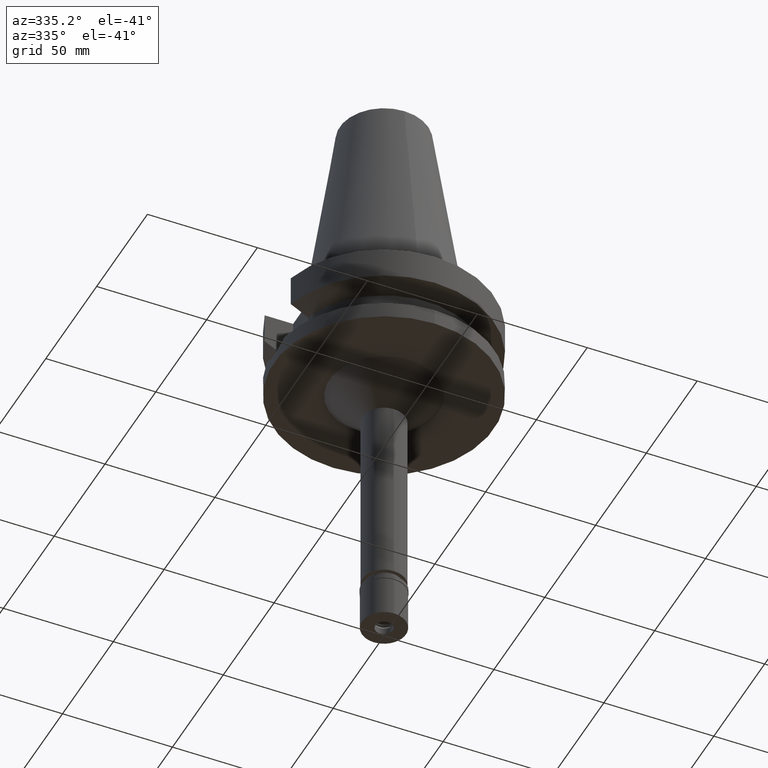
[diagram: clean part render]
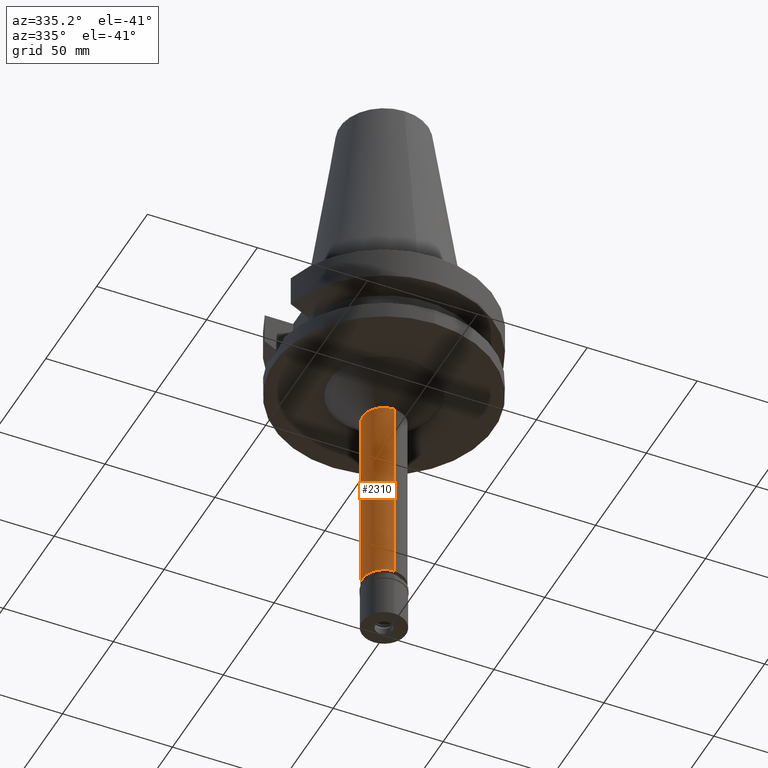
[diagram: same view with one face highlighted and labeled with its STEP entity id]
A machine part, auxiliary view. The second image highlights one B-rep face of the part: STEP entity #2310.
In plain terms, the highlighted cylindrical surface (edge-blend (fillet) strip) has radius 9.75 mm, axis along (0, 0, -1).
Its self-contained STEP definition (entity closure, byte-faithful):
#35 = VERTEX_POINT ( 'NONE', #339 ) ;
#62 = VECTOR ( 'NONE', #1344, 1000.000000000000000 ) ;
#100 = DIRECTION ( 'NONE',  ( 0.0000000000000000000, 0.0000000000000000000, 1.000000000000000000 ) ) ;
#187 = CARTESIAN_POINT ( 'NONE',  ( 0.0000000000000000000, 0.0000000000000000000, -53.00000000000000000 ) ) ;
#238 = CIRCLE ( 'NONE', #2020, 9.750000000000000000 ) ;
#303 = EDGE_LOOP ( 'NONE', ( #1576, #1874, #437, #865 ) ) ;
#339 = CARTESIAN_POINT ( 'NONE',  ( 0.0000000000000000000, -9.750000000000000000, -53.00000000000000000 ) ) ;
#385 = VECTOR ( 'NONE', #421, 1000.000000000000000 ) ;
#421 = DIRECTION ( 'NONE',  ( 0.0000000000000000000, 0.0000000000000000000, -1.000000000000000000 ) ) ;
#435 = VERTEX_POINT ( 'NONE', #2921 ) ;
#437 = ORIENTED_EDGE ( 'NONE', *, *, #807, .T. ) ;
#511 = CARTESIAN_POINT ( 'NONE',  ( 0.0000000000000000000, -9.750000000000000000, -141.5999999999999943 ) ) ;
#521 = FACE_OUTER_BOUND ( 'NONE', #303, .T. ) ;
#794 = DIRECTION ( 'NONE',  ( 0.0000000000000000000, 0.0000000000000000000, -1.000000000000000000 ) ) ;
#807 = EDGE_CURVE ( 'NONE', #35, #435, #1401, .T. ) ;
#865 = ORIENTED_EDGE ( 'NONE', *, *, #2531, .T. ) ;
#882 = EDGE_CURVE ( 'NONE', #35, #3134, #2773, .T. ) ;
#1107 = CARTESIAN_POINT ( 'NONE',  ( 0.0000000000000000000, 9.750000000000000000, -53.00000000000000000 ) ) ;
#1293 = EDGE_CURVE ( 'NONE', #3148, #3134, #238, .T. ) ;
#1295 = CARTESIAN_POINT ( 'NONE',  ( 0.0000000000000000000, 2.629806536488999751E-14, 114.7399999999999949 ) ) ;
#1344 = DIRECTION ( 'NONE',  ( 0.0000000000000000000, 0.0000000000000000000, -1.000000000000000000 ) ) ;
#1401 = CIRCLE ( 'NONE', #2783, 9.750000000000000000 ) ;
#1486 = CYLINDRICAL_SURFACE ( 'NONE', #2261, 9.750000000000000000 ) ;
#1576 = ORIENTED_EDGE ( 'NONE', *, *, #1293, .T. ) ;
#1874 = ORIENTED_EDGE ( 'NONE', *, *, #882, .F. ) ;
#2020 = AXIS2_PLACEMENT_3D ( 'NONE', #2066, #100, #3034 ) ;
#2066 = CARTESIAN_POINT ( 'NONE',  ( 0.0000000000000000000, 2.629806536488999751E-14, -141.5999999999999943 ) ) ;
#2261 = AXIS2_PLACEMENT_3D ( 'NONE', #1295, #3006, #2471 ) ;
#2310 = ADVANCED_FACE ( 'NONE', ( #521 ), #1486, .T. ) ;
#2471 = DIRECTION ( 'NONE',  ( 0.0000000000000000000, -1.000000000000000000, 0.0000000000000000000 ) ) ;
#2473 = CARTESIAN_POINT ( 'NONE',  ( 0.0000000000000000000, 9.750000000000000000, -141.5999999999999943 ) ) ;
#2531 = EDGE_CURVE ( 'NONE', #435, #3148, #2801, .T. ) ;
#2610 = CARTESIAN_POINT ( 'NONE',  ( 0.0000000000000000000, -9.750000000000000000, -53.00000000000000000 ) ) ;
#2773 = LINE ( 'NONE', #2610, #385 ) ;
#2783 = AXIS2_PLACEMENT_3D ( 'NONE', #187, #794, #2994 ) ;
#2801 = LINE ( 'NONE', #1107, #62 ) ;
#2921 = CARTESIAN_POINT ( 'NONE',  ( 0.0000000000000000000, 9.750000000000000000, -53.00000000000000000 ) ) ;
#2994 = DIRECTION ( 'NONE',  ( 0.0000000000000000000, -1.000000000000000000, 0.0000000000000000000 ) ) ;
#3006 = DIRECTION ( 'NONE',  ( 0.0000000000000000000, 0.0000000000000000000, -1.000000000000000000 ) ) ;
#3034 = DIRECTION ( 'NONE',  ( 0.0000000000000000000, 1.000000000000000000, 0.0000000000000000000 ) ) ;
#3134 = VERTEX_POINT ( 'NONE', #511 ) ;
#3148 = VERTEX_POINT ( 'NONE', #2473 ) ;